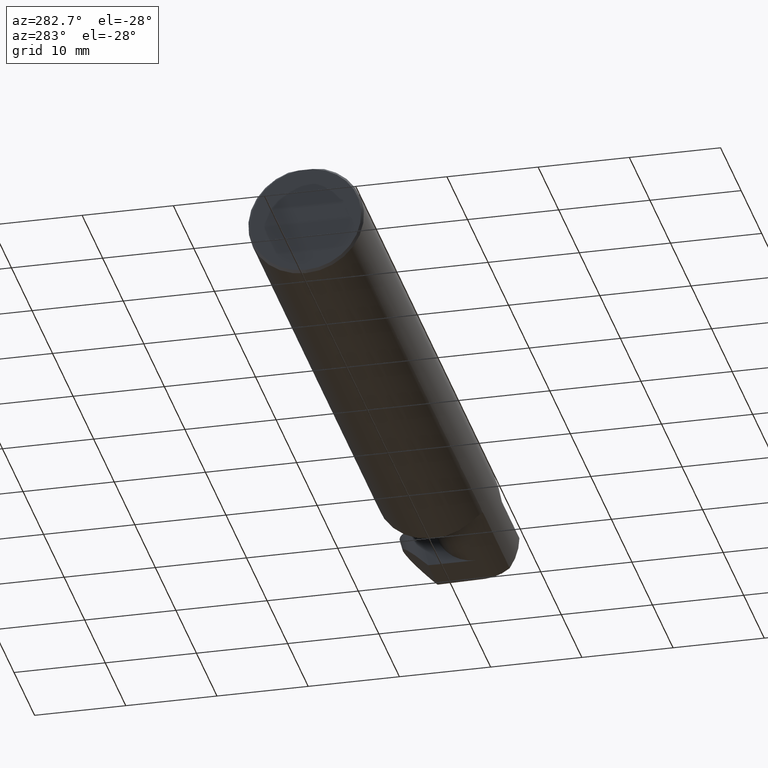
[diagram: clean part render]
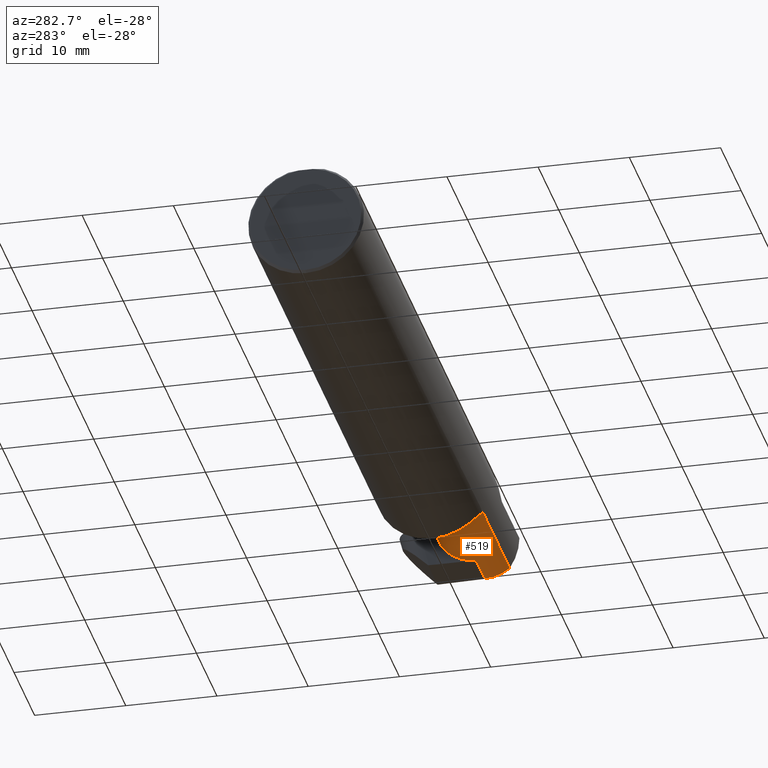
[diagram: same view with one face highlighted and labeled with its STEP entity id]
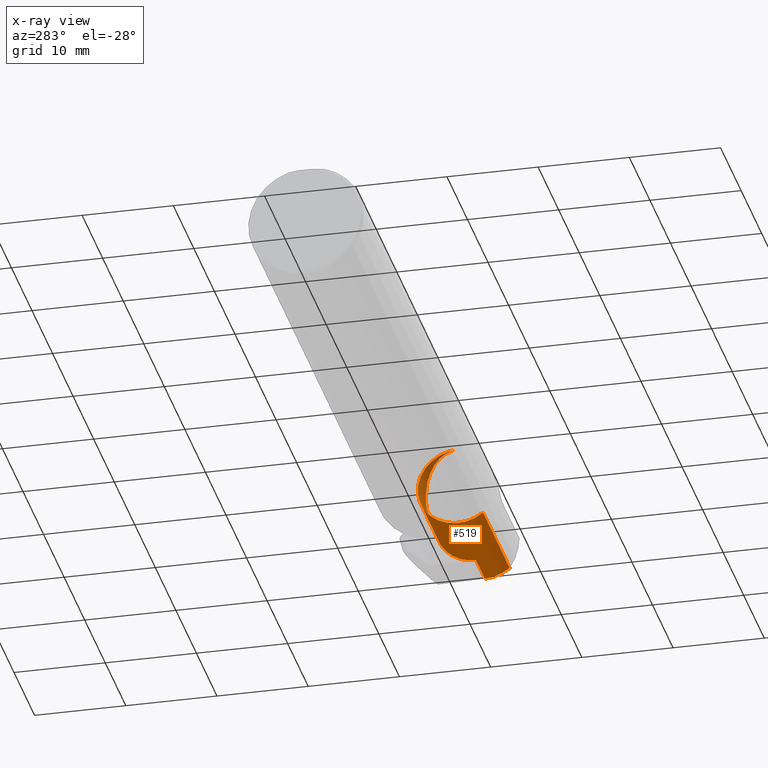
[diagram: x-ray of the same camera — body ghosted, the highlighted face saturated]
A machine part, auxiliary view. The second image highlights one B-rep face of the part: STEP entity #519.
The next image is the same camera in x-ray: the body ghosted, the highlighted face saturated — about 14% of this face is hidden behind the body in this view.
In plain terms, the highlighted cylindrical surface (partial cylindrical patch) has radius 4.445 mm, axis along (-1, -0, -0).
Its self-contained STEP definition (entity closure, byte-faithful):
#1 = CARTESIAN_POINT ( 'NONE',  ( 2.985694921565461790, -0.1771157075472505060, -0.1623092683844334361 ) ) ;
#21 = VERTEX_POINT ( 'NONE', #330 ) ;
#24 = ORIENTED_EDGE ( 'NONE', *, *, #618, .F. ) ;
#46 = VERTEX_POINT ( 'NONE', #484 ) ;
#63 = EDGE_CURVE ( 'NONE', #769, #250, #377, .T. ) ;
#69 = EDGE_CURVE ( 'NONE', #705, #556, #596, .T. ) ;
#78 = CARTESIAN_POINT ( 'NONE',  ( 2.803339167728504666, 0.07414999999999977165, 0.000000000000000000 ) ) ;
#91 = CARTESIAN_POINT ( 'NONE',  ( 2.803339167728504666, 0.07414999999999977165, 0.000000000000000000 ) ) ;
#97 = CARTESIAN_POINT ( 'NONE',  ( 2.985032866776429650, -0.2080850024789288044, -0.1382955322609669135 ) ) ;
#107 = VECTOR ( 'NONE', #614, 39.37007874015748143 ) ;
#127 = LINE ( 'NONE', #375, #323 ) ;
#132 = LINE ( 'NONE', #184, #256 ) ;
#149 = CARTESIAN_POINT ( 'NONE',  ( 2.650000000000000355, 0.07414999999999984104, 4.286263797015729199E-17 ) ) ;
#152 = CARTESIAN_POINT ( 'NONE',  ( 2.650000000000000355, 0.07414999999999984104, 4.286263797015729199E-17 ) ) ;
#160 = CARTESIAN_POINT ( 'NONE',  ( 2.988136526189751230, -0.1008499999999992180, -0.1750000000000000722 ) ) ;
#173 = CARTESIAN_POINT ( 'NONE',  ( 2.475000000000000089, -0.1008500000000001340, 0.000000000000000000 ) ) ;
#178 = DIRECTION ( 'NONE',  ( -1.000000000000000000, -0.000000000000000000, -0.000000000000000000 ) ) ;
#184 = CARTESIAN_POINT ( 'NONE',  ( 2.450000000000000178, 0.07404339472834142732, -0.006107411922944308742 ) ) ;
#197 = LINE ( 'NONE', #329, #242 ) ;
#203 = CARTESIAN_POINT ( 'NONE',  ( 2.814490853840988738, 0.07404339472834124691, -0.006107411922953761250 ) ) ;
#213 = CARTESIAN_POINT ( 'NONE',  ( 2.475000000000000089, -0.1008500000000001895, 0.1749999999999984346 ) ) ;
#224 = DIRECTION ( 'NONE',  ( 0.000000000000000000, -1.000000000000000000, 0.000000000000000000 ) ) ;
#230 = DIRECTION ( 'NONE',  ( 0.000000000000000000, -1.000000000000000000, 0.000000000000000000 ) ) ;
#239 = LINE ( 'NONE', #749, #107 ) ;
#241 = ORIENTED_EDGE ( 'NONE', *, *, #63, .F. ) ;
#242 = VECTOR ( 'NONE', #771, 39.37007874015748143 ) ;
#247 = CARTESIAN_POINT ( 'NONE',  ( 2.803303632637951459, 0.07411446490944692544, -0.002035803974317937620 ) ) ;
#250 = VERTEX_POINT ( 'NONE', #558 ) ;
#256 = VECTOR ( 'NONE', #379, 39.37007874015748143 ) ;
#266 = CARTESIAN_POINT ( 'NONE',  ( 2.814490853840988738, 0.07404339472834124691, -0.006107411922953761250 ) ) ;
#267 = ORIENTED_EDGE ( 'NONE', *, *, #383, .T. ) ;
#287 = EDGE_CURVE ( 'NONE', #556, #46, #127, .T. ) ;
#298 = CARTESIAN_POINT ( 'NONE',  ( 2.986768025497131607, -0.1400387324517225474, -0.1750000000000002387 ) ) ;
#299 =( BOUNDED_CURVE ( )  B_SPLINE_CURVE ( 3, ( #388, #656, #713, #149 ),
 .UNSPECIFIED., .F., .F. ) 
 B_SPLINE_CURVE_WITH_KNOTS ( ( 4, 4 ),
 ( 0.000000000000000000, 1.570796326794896780 ),
 .UNSPECIFIED. ) 
 CURVE ( )  GEOMETRIC_REPRESENTATION_ITEM ( )  RATIONAL_B_SPLINE_CURVE ( ( 1.000000000000000000, 0.8047378541243649375, 0.8047378541243649375, 1.000000000000000000 ) ) 
 REPRESENTATION_ITEM ( '' )  );
#323 = VECTOR ( 'NONE', #178, 39.37007874015748143 ) ;
#327 = ORIENTED_EDGE ( 'NONE', *, *, #69, .F. ) ;
#329 = CARTESIAN_POINT ( 'NONE',  ( 2.643342309999999973, -0.2080850024789289432, -0.1382955322609669135 ) ) ;
#330 = CARTESIAN_POINT ( 'NONE',  ( 2.803232562456845933, 0.07404339472834124691, -0.006107411922953809823 ) ) ;
#334 = VERTEX_POINT ( 'NONE', #266 ) ;
#339 = ORIENTED_EDGE ( 'NONE', *, *, #629, .F. ) ;
#346 = DIRECTION ( 'NONE',  ( -1.000000000000000000, -3.304490794295083593E-16, -0.000000000000000000 ) ) ;
#350 = VERTEX_POINT ( 'NONE', #91 ) ;
#363 = CARTESIAN_POINT ( 'NONE',  ( 2.803268097547399140, 0.07407892981889409312, -0.004071607948635876106 ) ) ;
#375 = CARTESIAN_POINT ( 'NONE',  ( 3.402190948718819996, -0.1008499999999992180, -0.1750000000000000722 ) ) ;
#377 = CIRCLE ( 'NONE', #653, 0.1750000000000000444 ) ;
#378 = AXIS2_PLACEMENT_3D ( 'NONE', #604, #346, #230 ) ;
#379 = DIRECTION ( 'NONE',  ( -1.000000000000000000, -3.304490794295083593E-16, -0.000000000000000000 ) ) ;
#381 = EDGE_LOOP ( 'NONE', ( #267, #241, #400, #772, #339, #24, #649, #689, #327 ) ) ;
#383 = EDGE_CURVE ( 'NONE', #705, #250, #197, .T. ) ;
#388 = CARTESIAN_POINT ( 'NONE',  ( 2.475000000000000089, -0.1008500000000001895, 0.1749999999999984346 ) ) ;
#400 = ORIENTED_EDGE ( 'NONE', *, *, #406, .T. ) ;
#404 = VERTEX_POINT ( 'NONE', #152 ) ;
#406 = EDGE_CURVE ( 'NONE', #769, #404, #299, .T. ) ;
#407 = CARTESIAN_POINT ( 'NONE',  ( 2.988136526189751230, -0.1008499999999992180, -0.1750000000000000722 ) ) ;
#427 = CARTESIAN_POINT ( 'NONE',  ( 2.803232562456845933, 0.07404339472834124691, -0.006107411922953809823 ) ) ;
#466 = CYLINDRICAL_SURFACE ( 'NONE', #378, 0.1750000000000000444 ) ;
#476 = FACE_OUTER_BOUND ( 'NONE', #381, .T. ) ;
#484 = CARTESIAN_POINT ( 'NONE',  ( 2.817597862438286249, -0.1008500000000000368, -0.1750000000000000444 ) ) ;
#519 = ADVANCED_FACE ( 'NONE', ( #476 ), #466, .T. ) ;
#523 = CARTESIAN_POINT ( 'NONE',  ( 2.817597862438286249, -0.1008500000000000368, -0.1750000000000000444 ) ) ;
#546 = DIRECTION ( 'NONE',  ( -1.000000000000000000, -3.304490794295083593E-16, -0.000000000000000000 ) ) ;
#552 = CARTESIAN_POINT ( 'NONE',  ( 2.985032866776429650, -0.2080850024789288044, -0.1382955322609669135 ) ) ;
#556 = VERTEX_POINT ( 'NONE', #407 ) ;
#558 = CARTESIAN_POINT ( 'NONE',  ( 2.475000000000000089, -0.2080850024789288322, -0.1382955322609670523 ) ) ;
#591 = B_SPLINE_CURVE_WITH_KNOTS ( 'NONE', 3,
 ( #427, #363, #247, #78 ),
 .UNSPECIFIED., .F., .F.,
 ( 4, 4 ),
 ( 0.000000000000000000, 1.000000000000000000 ),
 .UNSPECIFIED. ) ;
#596 =( BOUNDED_CURVE ( )  B_SPLINE_CURVE ( 3, ( #552, #1, #298, #160 ),
 .UNSPECIFIED., .F., .T. ) 
 B_SPLINE_CURVE_WITH_KNOTS ( ( 4, 4 ),
 ( 0.4474640105399709245, 1.107026853503878749 ),
 .UNSPECIFIED. ) 
 CURVE ( )  GEOMETRIC_REPRESENTATION_ITEM ( )  RATIONAL_B_SPLINE_CURVE ( ( 1.000000000000000000, 0.9640754331822828371, 0.9640754331822828371, 1.000000000000000000 ) ) 
 REPRESENTATION_ITEM ( '' )  );
#604 = CARTESIAN_POINT ( 'NONE',  ( 2.450000000000000178, -0.1008500000000001340, 0.000000000000000000 ) ) ;
#614 = DIRECTION ( 'NONE',  ( 1.000000000000000000, 3.304490794295083593E-16, 0.000000000000000000 ) ) ;
#618 = EDGE_CURVE ( 'NONE', #334, #21, #132, .T. ) ;
#629 = EDGE_CURVE ( 'NONE', #21, #350, #591, .T. ) ;
#632 = EDGE_CURVE ( 'NONE', #404, #350, #239, .T. ) ;
#635 = CARTESIAN_POINT ( 'NONE',  ( 2.816292363343102068, 0.07056399972053252478, -0.1057442486376092977 ) ) ;
#649 = ORIENTED_EDGE ( 'NONE', *, *, #765, .F. ) ;
#653 = AXIS2_PLACEMENT_3D ( 'NONE', #173, #546, #224 ) ;
#656 = CARTESIAN_POINT ( 'NONE',  ( 2.474999999999998757, 0.001662626584708217772, 0.1750000000000000999 ) ) ;
#689 = ORIENTED_EDGE ( 'NONE', *, *, #287, .F. ) ;
#705 = VERTEX_POINT ( 'NONE', #97 ) ;
#713 = CARTESIAN_POINT ( 'NONE',  ( 2.547487373415291412, 0.07414999999999992430, 0.1025126265847084439 ) ) ;
#715 = CARTESIAN_POINT ( 'NONE',  ( 2.817566416972957732, -0.001152430219572304860, -0.1750000000000000722 ) ) ;
#749 = CARTESIAN_POINT ( 'NONE',  ( 2.450000000000000178, 0.07414999999999988267, 6.735557395310436353E-17 ) ) ;
#755 =( BOUNDED_CURVE ( )  B_SPLINE_CURVE ( 3, ( #523, #715, #635, #203 ),
 .UNSPECIFIED., .F., .T. ) 
 B_SPLINE_CURVE_WITH_KNOTS ( ( 4, 4 ),
 ( 3.159045946109718006, 4.694935687864635554 ),
 .UNSPECIFIED. ) 
 CURVE ( )  GEOMETRIC_REPRESENTATION_ITEM ( )  RATIONAL_B_SPLINE_CURVE ( ( 1.000000000000000000, 0.8128932002257888145, 0.8128932002257888145, 1.000000000000000000 ) ) 
 REPRESENTATION_ITEM ( '' )  );
#765 = EDGE_CURVE ( 'NONE', #46, #334, #755, .T. ) ;
#769 = VERTEX_POINT ( 'NONE', #213 ) ;
#771 = DIRECTION ( 'NONE',  ( -1.000000000000000000, -3.304490794295083593E-16, -0.000000000000000000 ) ) ;
#772 = ORIENTED_EDGE ( 'NONE', *, *, #632, .T. ) ;